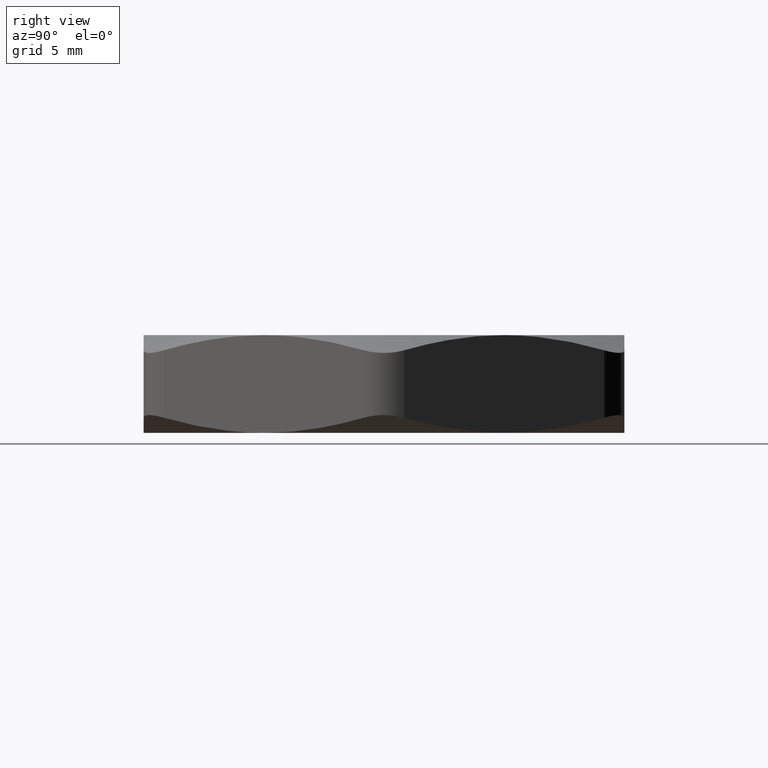
[diagram: clean part render]
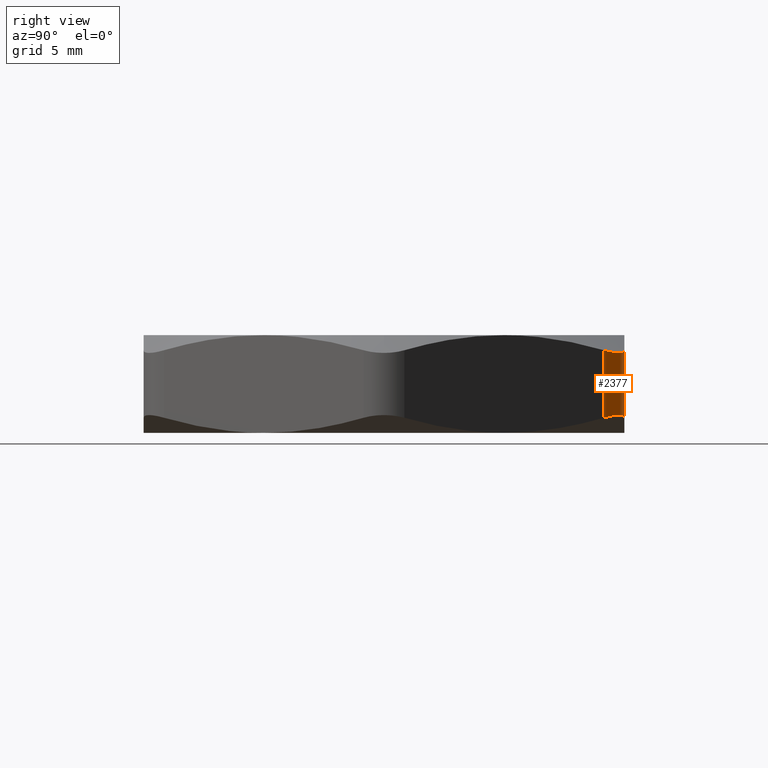
[diagram: same view with one face highlighted and labeled with its STEP entity id]
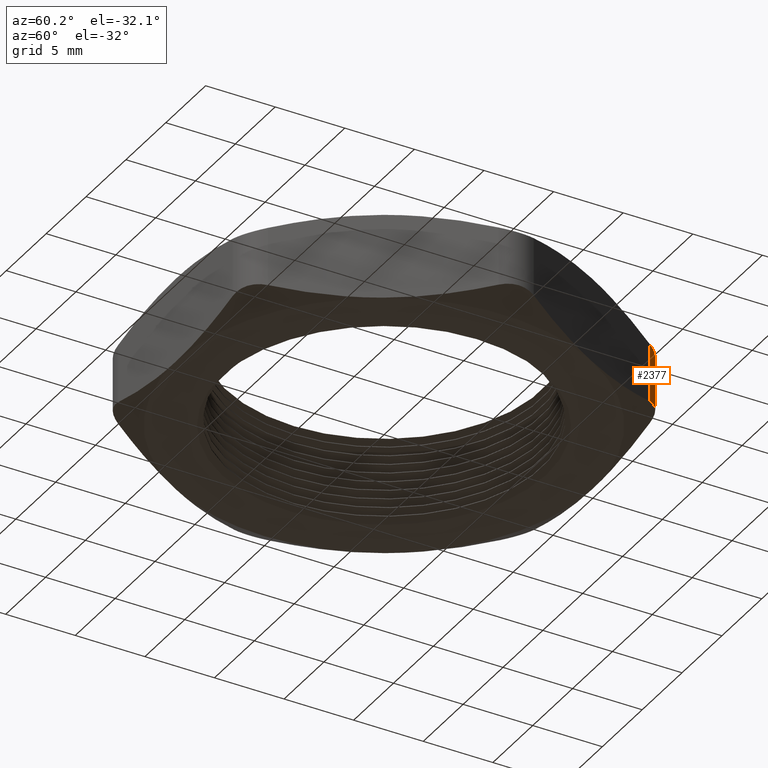
[diagram: same view with one face highlighted and labeled with its STEP entity id]
A machine part, right view. The second image highlights one B-rep face of the part: STEP entity #2377.
A second angle (auxiliary view) of the same face is appended — the face is thin or edge-on in the first view.
In plain terms, the highlighted cylindrical surface (partial cylindrical patch) has radius 2.54 mm, axis along (0, 0, -1).
Its self-contained STEP definition (entity closure, byte-faithful):
#751 = CARTESIAN_POINT ( 'NONE',  ( 0.2829016319029168900, 0.5900000000000000800, 0.03713458295164568500 ) ) ;
#753 = B_SPLINE_CURVE_WITH_KNOTS ( 'NONE', 3,
 ( #751, #792, #791, #790, #789, #788, #787, #786, #785, #784 ),
 .UNSPECIFIED., .F., .F.,
 ( 4, 2, 2, 2, 4 ),
 ( 1.748223473168675600E-018, 0.0006682960564478944000, 0.001336592112895784700, 0.002004888169343675200, 0.002673184225791565500 ),
 .UNSPECIFIED. ) ;
#784 = CARTESIAN_POINT ( 'NONE',  ( 0.3695041722813607900, 0.5400000000000001500, 0.03713458295164581000 ) ) ;
#785 = CARTESIAN_POINT ( 'NONE',  ( 0.3651904554058998400, 0.5474715767977663700, 0.03928819234747314700 ) ) ;
#786 = CARTESIAN_POINT ( 'NONE',  ( 0.3598414532580949100, 0.5544671193442022300, 0.04095983016372668100 ) ) ;
#787 = CARTESIAN_POINT ( 'NONE',  ( 0.3475476063483933800, 0.5667896059027595100, 0.04318959498730314000 ) ) ;
#788 = CARTESIAN_POINT ( 'NONE',  ( 0.3404397416420370000, 0.5722587433953416600, 0.04376857535265836500 ) ) ;
#789 = CARTESIAN_POINT ( 'NONE',  ( 0.3252205007555260500, 0.5810288321158045800, 0.04376146073741395800 ) ) ;
#790 = CARTESIAN_POINT ( 'NONE',  ( 0.3170041821407506000, 0.5844124196966256100, 0.04318476353941792100 ) ) ;
#791 = CARTESIAN_POINT ( 'NONE',  ( 0.3000751423984724400, 0.5889027778323480100, 0.04092971715311680100 ) ) ;
#792 = CARTESIAN_POINT ( 'NONE',  ( 0.2915267417083394200, 0.5899999999999998600, 0.03928761223628228500 ) ) ;
#1008 = FACE_OUTER_BOUND ( 'NONE', #2385, .T. ) ;
#1111 = DIRECTION ( 'NONE',  ( -1.000000000000000000, 0.0000000000000000000, 0.0000000000000000000 ) ) ;
#1112 = DIRECTION ( 'NONE',  ( 0.0000000000000000000, 0.0000000000000000000, -1.000000000000000000 ) ) ;
#1113 = AXIS2_PLACEMENT_3D ( 'NONE', #1116, #1112, #1111 ) ;
#1114 = CYLINDRICAL_SURFACE ( 'NONE', #1113, 0.1000000000000000200 ) ;
#1116 = CARTESIAN_POINT ( 'NONE',  ( 0.2829016319029169500, 0.4900000000000001000, 0.2399999999999999900 ) ) ;
#1186 = VERTEX_POINT ( 'NONE', #1708 ) ;
#1295 = CARTESIAN_POINT ( 'NONE',  ( 0.3170803941385637600, 0.5843798590735619400, 0.1968104050126968700 ) ) ;
#1296 = CARTESIAN_POINT ( 'NONE',  ( 0.3253707384971077900, 0.5809588364174853600, 0.1962314246473416700 ) ) ;
#1297 = CARTESIAN_POINT ( 'NONE',  ( 0.3405754785657275600, 0.5721636315436838800, 0.1962385392625860800 ) ) ;
#1298 = CARTESIAN_POINT ( 'NONE',  ( 0.3476139106740359600, 0.5667398846881118700, 0.1968152364605820200 ) ) ;
#1299 = CARTESIAN_POINT ( 'NONE',  ( 0.3599671947628009200, 0.5543240852774840000, 0.1990702828468831900 ) ) ;
#1300 = CARTESIAN_POINT ( 'NONE',  ( 0.3651916173786495800, 0.5474695642019261600, 0.2007123877637175500 ) ) ;
#1301 = CARTESIAN_POINT ( 'NONE',  ( 0.3695041722813609000, 0.5399999999999999200, 0.2028654170483542300 ) ) ;
#1306 = B_SPLINE_CURVE_WITH_KNOTS ( 'NONE', 3,
 ( #1301, #1300, #1299, #1298, #1297, #1296, #1295, #1351, #1350, #1349 ),
 .UNSPECIFIED., .F., .F.,
 ( 4, 2, 2, 2, 4 ),
 ( 2.602085213965210600E-018, 0.0006682960564478942900, 0.001336592112895786000, 0.002004888169343677800, 0.002673184225791569400 ),
 .UNSPECIFIED. ) ;
#1333 = CARTESIAN_POINT ( 'NONE',  ( 0.2829016319029168900, 0.5900000000000000800, 0.03713458295164568500 ) ) ;
#1342 = CARTESIAN_POINT ( 'NONE',  ( 0.3695041722813607900, 0.5400000000000001500, 0.03713458295164581000 ) ) ;
#1349 = CARTESIAN_POINT ( 'NONE',  ( 0.2829016319029168900, 0.5900000000000000800, 0.2028654170483543400 ) ) ;
#1350 = CARTESIAN_POINT ( 'NONE',  ( 0.2915290656538393500, 0.5900000000000004100, 0.2007118076525269100 ) ) ;
#1351 = CARTESIAN_POINT ( 'NONE',  ( 0.3002618842862101500, 0.5888653995283216200, 0.1990401698362733500 ) ) ;
#1374 = DIRECTION ( 'NONE',  ( 0.0000000000000000000, 0.0000000000000000000, -1.000000000000000000 ) ) ;
#1375 = VECTOR ( 'NONE', #1374, 39.37007874015748100 ) ;
#1376 = CARTESIAN_POINT ( 'NONE',  ( 0.2829016319029169500, 0.5900000000000000800, 0.2399999999999999900 ) ) ;
#1377 = LINE ( 'NONE', #1376, #1375 ) ;
#1396 = DIRECTION ( 'NONE',  ( 0.0000000000000000000, 0.0000000000000000000, 1.000000000000000000 ) ) ;
#1397 = VECTOR ( 'NONE', #1396, 39.37007874015748100 ) ;
#1398 = CARTESIAN_POINT ( 'NONE',  ( 0.3695041722813607900, 0.5400000000000001500, 0.2399999999999999900 ) ) ;
#1399 = LINE ( 'NONE', #1398, #1397 ) ;
#1400 = CARTESIAN_POINT ( 'NONE',  ( 0.2829016319029168900, 0.5900000000000000800, 0.2028654170483543400 ) ) ;
#1708 = CARTESIAN_POINT ( 'NONE',  ( 0.3695041722813609000, 0.5399999999999999200, 0.2028654170483542300 ) ) ;
#2219 = EDGE_CURVE ( 'NONE', #2507, #2499, #753, .T. ) ;
#2377 = ADVANCED_FACE ( 'NONE', ( #1008 ), #1114, .T. ) ;
#2385 = EDGE_LOOP ( 'NONE', ( #2433, #2425, #2452, #2446 ) ) ;
#2425 = ORIENTED_EDGE ( 'NONE', *, *, #2541, .F. ) ;
#2433 = ORIENTED_EDGE ( 'NONE', *, *, #2493, .F. ) ;
#2446 = ORIENTED_EDGE ( 'NONE', *, *, #2511, .F. ) ;
#2452 = ORIENTED_EDGE ( 'NONE', *, *, #2219, .F. ) ;
#2493 = EDGE_CURVE ( 'NONE', #1186, #2540, #1306, .T. ) ;
#2499 = VERTEX_POINT ( 'NONE', #1342 ) ;
#2507 = VERTEX_POINT ( 'NONE', #1333 ) ;
#2511 = EDGE_CURVE ( 'NONE', #2540, #2507, #1377, .T. ) ;
#2540 = VERTEX_POINT ( 'NONE', #1400 ) ;
#2541 = EDGE_CURVE ( 'NONE', #2499, #1186, #1399, .T. ) ;